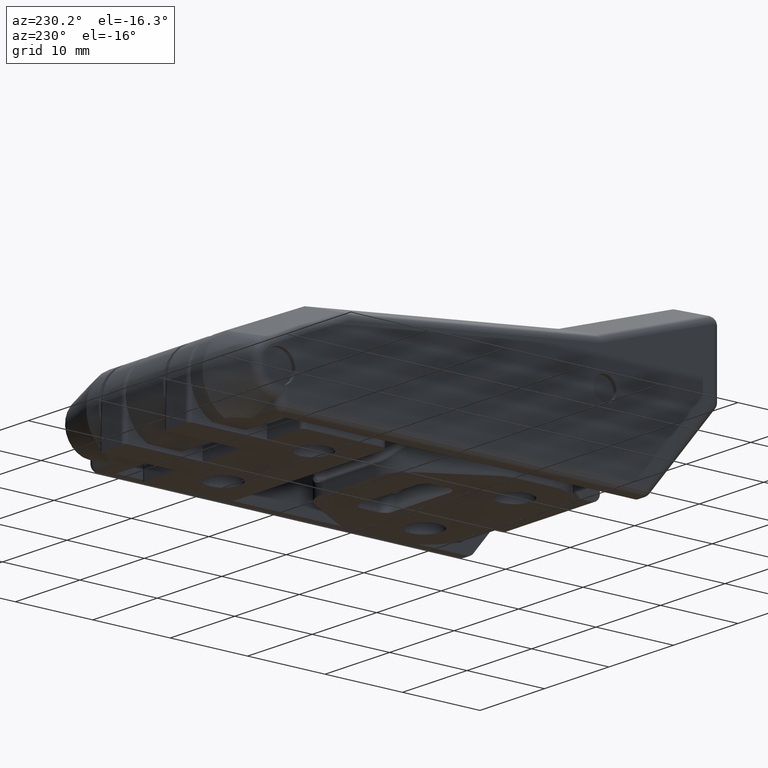
[diagram: clean part render]
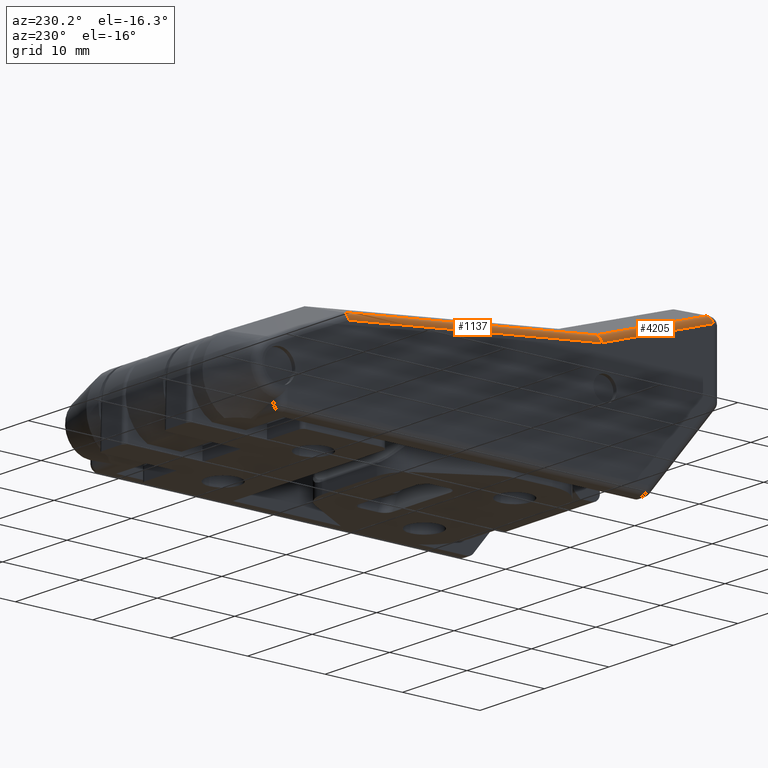
[diagram: same view with one multi-face feature highlighted, each face labeled with its STEP entity id]
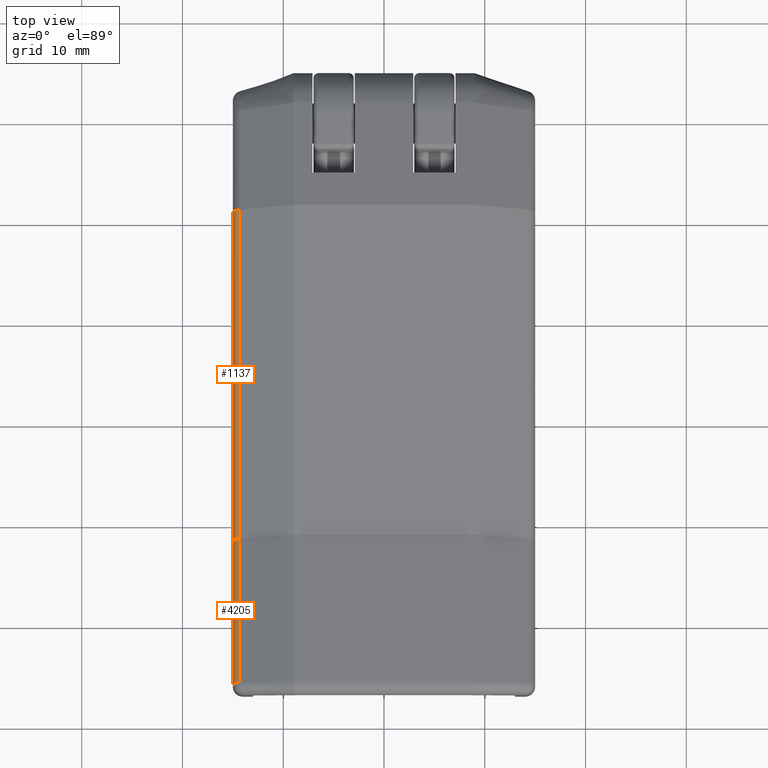
[diagram: same view with one multi-face feature highlighted, each face labeled with its STEP entity id]
A machine part, auxiliary view. The highlighted faces form ONE feature: a constant-radius fillet chain: 2 tangent blend faces with common blend radius 1 mm. The faces share edges in the B-rep.
A second angle (top view) of the same feature is appended — it is thin or edge-on in the first view.
Their STEP definitions:
[1] entity #1137 (Cylinder):
#237 = ORIENTED_EDGE ( 'NONE', *, *, #2451, .F. ) ;
#315 = CYLINDRICAL_SURFACE ( 'NONE', #10480, 1.000000000000000400 ) ;
#699 = CARTESIAN_POINT ( 'NONE',  ( -15.00000000000000000, -41.58161922099627400, 10.12842524497670200 ) ) ;
#748 = CARTESIAN_POINT ( 'NONE',  ( -14.73926546838042200, -41.40896270004362400, 10.92149532568230800 ) ) ;
#785 = ORIENTED_EDGE ( 'NONE', *, *, #5878, .F. ) ;
#1015 = ORIENTED_EDGE ( 'NONE', *, *, #10416, .F. ) ;
#1137 = ADVANCED_FACE ( 'NONE', ( #6112 ), #315, .T. ) ;
#1267 = CARTESIAN_POINT ( 'NONE',  ( -14.31622776601683500, -41.40131146226225000, 11.06256465520910500 ) ) ;
#2451 = EDGE_CURVE ( 'NONE', #12028, #13137, #8706, .T. ) ;
#2913 = VERTEX_POINT ( 'NONE', #8005 ) ;
#3031 = EDGE_CURVE ( 'NONE', #3457, #2913, #8625, .T. ) ;
#3359 = CARTESIAN_POINT ( 'NONE',  ( -14.73926546838042000, -8.700923631012017300, 7.132149335959893800 ) ) ;
#3457 = VERTEX_POINT ( 'NONE', #12843 ) ;
#3458 = CARTESIAN_POINT ( 'NONE',  ( -15.00000000000000000, -8.795644311069803900, 6.778953610715476000 ) ) ;
#4583 = CARTESIAN_POINT ( 'NONE',  ( -14.31622776601683700, -8.664000860478573400, 7.269827451326346300 ) ) ;
#5878 = EDGE_CURVE ( 'NONE', #13137, #2913, #12982, .T. ) ;
#6112 = FACE_OUTER_BOUND ( 'NONE', #13254, .T. ) ;
#6190 = CARTESIAN_POINT ( 'NONE',  ( -15.00000000000000000, -41.48629429848399000, 10.56628501171390700 ) ) ;
#6793 = VECTOR ( 'NONE', #13284, 1000.000000000000200 ) ;
#7119 = DIRECTION ( 'NONE',  ( -0.0000000000000000000, 0.9933557750294945700, -0.1150839007661454600 ) ) ;
#7662 = CARTESIAN_POINT ( 'NONE',  ( -13.99999999999999800, -8.537132549716442800, 6.300100569627764100 ) ) ;
#8005 = CARTESIAN_POINT ( 'NONE',  ( -14.31622776601683700, -41.37881831275213800, 11.05995874154633500 ) ) ;
#8363 = VECTOR ( 'NONE', #7119, 1000.000000000000200 ) ;
#8386 = CARTESIAN_POINT ( 'NONE',  ( -14.31622776601683700, -41.37881831275213800, 11.05995874154633500 ) ) ;
#8625 =( BOUNDED_CURVE ( )  B_SPLINE_CURVE ( 3, ( #699, #6190, #748, #8386 ),
 .UNSPECIFIED., .F., .F. ) 
 B_SPLINE_CURVE_WITH_KNOTS ( ( 4, 4 ),
 ( 4.712388980384691500, 5.961434752782942300 ),
 .UNSPECIFIED. ) 
 CURVE ( )  GEOMETRIC_REPRESENTATION_ITEM ( )  RATIONAL_B_SPLINE_CURVE ( ( 1.000000000000000000, 0.8741614567837079400, 0.8741614567837079400, 1.000000000000000000 ) ) 
 REPRESENTATION_ITEM ( '' )  );
#8706 =( BOUNDED_CURVE ( )  B_SPLINE_CURVE ( 3, ( #11117, #3458, #3359, #4583 ),
 .UNSPECIFIED., .F., .F. ) 
 B_SPLINE_CURVE_WITH_KNOTS ( ( 4, 4 ),
 ( 1.570796326794896600, 2.819842099193149700 ),
 .UNSPECIFIED. ) 
 CURVE ( )  GEOMETRIC_REPRESENTATION_ITEM ( )  RATIONAL_B_SPLINE_CURVE ( ( 1.000000000000000000, 0.8741614567837073800, 0.8741614567837073800, 1.000000000000000000 ) ) 
 REPRESENTATION_ITEM ( '' )  );
#8738 = DIRECTION ( 'NONE',  ( 0.0000000000000000000, 0.1150839007661458400, 0.9933557750294945700 ) ) ;
#8878 = CARTESIAN_POINT ( 'NONE',  ( -14.31622776601683700, -8.664000860478573400, 7.269827451326346300 ) ) ;
#10366 = CARTESIAN_POINT ( 'NONE',  ( -15.00000000000000000, -8.806628348063100000, 6.331322643826606400 ) ) ;
#10416 = EDGE_CURVE ( 'NONE', #3457, #12028, #11280, .T. ) ;
#10446 = ORIENTED_EDGE ( 'NONE', *, *, #3031, .T. ) ;
#10480 = AXIS2_PLACEMENT_3D ( 'NONE', #7662, #13170, #8738 ) ;
#10921 = CARTESIAN_POINT ( 'NONE',  ( -15.00000000000000000, -8.912404363479145900, 6.343577182198034200 ) ) ;
#11117 = CARTESIAN_POINT ( 'NONE',  ( -15.00000000000000000, -8.912404363479145900, 6.343577182198034200 ) ) ;
#11280 = LINE ( 'NONE', #10366, #8363 ) ;
#12028 = VERTEX_POINT ( 'NONE', #10921 ) ;
#12843 = CARTESIAN_POINT ( 'NONE',  ( -15.00000000000000000, -41.58161922099627400, 10.12842524497670200 ) ) ;
#12982 = LINE ( 'NONE', #1267, #6793 ) ;
#13137 = VERTEX_POINT ( 'NONE', #8878 ) ;
#13170 = DIRECTION ( 'NONE',  ( 0.0000000000000000000, 0.9933557750294947900, -0.1150839007661454700 ) ) ;
#13254 = EDGE_LOOP ( 'NONE', ( #10446, #785, #237, #1015 ) ) ;
#13284 = DIRECTION ( 'NONE',  ( -1.316562550716262800E-017, -0.9933557750294945700, 0.1150839007661454700 ) ) ;
[2] entity #4205 (Cylinder):
#109 = LINE ( 'NONE', #5221, #11050 ) ;
#699 = CARTESIAN_POINT ( 'NONE',  ( -15.00000000000000000, -41.58161922099627400, 10.12842524497670200 ) ) ;
#748 = CARTESIAN_POINT ( 'NONE',  ( -14.73926546838042200, -41.40896270004362400, 10.92149532568230800 ) ) ;
#1277 = DIRECTION ( 'NONE',  ( 0.0000000000000000000, -0.9512958520336057800, 0.3082794217972654200 ) ) ;
#1378 = CARTESIAN_POINT ( 'NONE',  ( -14.00000000000000000, -55.99999999988141000, 14.80088342953156800 ) ) ;
#1579 = CARTESIAN_POINT ( 'NONE',  ( -14.31622776601683700, -41.56179243109943400, 11.11925381288233100 ) ) ;
#1893 = CYLINDRICAL_SURFACE ( 'NONE', #7019, 1.000000000000000700 ) ;
#2117 = ORIENTED_EDGE ( 'NONE', *, *, #8303, .F. ) ;
#2230 = FACE_OUTER_BOUND ( 'NONE', #5001, .T. ) ;
#2480 = DIRECTION ( 'NONE',  ( 0.0000000000000000000, -0.3082794217972651400, -0.9512958520336057800 ) ) ;
#2913 = VERTEX_POINT ( 'NONE', #8005 ) ;
#3031 = EDGE_CURVE ( 'NONE', #3457, #2913, #8625, .T. ) ;
#3231 = VECTOR ( 'NONE', #13580, 1000.000000000000100 ) ;
#3457 = VERTEX_POINT ( 'NONE', #12843 ) ;
#3508 = ORIENTED_EDGE ( 'NONE', *, *, #3031, .F. ) ;
#3791 = EDGE_CURVE ( 'NONE', #11871, #12670, #5497, .T. ) ;
#4205 = ADVANCED_FACE ( 'NONE', ( #2230 ), #1893, .T. ) ;
#5001 = EDGE_LOOP ( 'NONE', ( #13442, #12912, #3508, #2117 ) ) ;
#5221 = CARTESIAN_POINT ( 'NONE',  ( -15.00000000000000000, -0.9814471863878896400, -3.028572688886282700 ) ) ;
#5497 = CIRCLE ( 'NONE', #9746, 1.000000000000000700 ) ;
#6190 = CARTESIAN_POINT ( 'NONE',  ( -15.00000000000000000, -41.48629429848399000, 10.56628501171390700 ) ) ;
#7019 = AXIS2_PLACEMENT_3D ( 'NONE', #7831, #1277, #13295 ) ;
#7175 = LINE ( 'NONE', #1579, #3231 ) ;
#7831 = CARTESIAN_POINT ( 'NONE',  ( -13.99999999999999800, -41.85425196969117000, 10.21677532655331400 ) ) ;
#8005 = CARTESIAN_POINT ( 'NONE',  ( -14.31622776601683700, -41.37881831275213800, 11.05995874154633500 ) ) ;
#8303 = EDGE_CURVE ( 'NONE', #11871, #3457, #109, .T. ) ;
#8386 = CARTESIAN_POINT ( 'NONE',  ( -14.31622776601683700, -41.37881831275213800, 11.05995874154633500 ) ) ;
#8625 =( BOUNDED_CURVE ( )  B_SPLINE_CURVE ( 3, ( #699, #6190, #748, #8386 ),
 .UNSPECIFIED., .F., .F. ) 
 B_SPLINE_CURVE_WITH_KNOTS ( ( 4, 4 ),
 ( 4.712388980384691500, 5.961434752782942300 ),
 .UNSPECIFIED. ) 
 CURVE ( )  GEOMETRIC_REPRESENTATION_ITEM ( )  RATIONAL_B_SPLINE_CURVE ( ( 1.000000000000000000, 0.8741614567837079400, 0.8741614567837079400, 1.000000000000000000 ) ) 
 REPRESENTATION_ITEM ( '' )  );
#9016 = DIRECTION ( 'NONE',  ( 1.069559100304545400E-015, 0.9512958520336057800, -0.3082794217972653100 ) ) ;
#9746 = AXIS2_PLACEMENT_3D ( 'NONE', #1378, #9016, #2480 ) ;
#10006 = CARTESIAN_POINT ( 'NONE',  ( -14.31622776601683700, -55.70754046128967500, 15.70336191586058500 ) ) ;
#10354 = EDGE_CURVE ( 'NONE', #2913, #12670, #7175, .T. ) ;
#10634 = CARTESIAN_POINT ( 'NONE',  ( -15.00000000000000000, -55.99999999988141000, 14.80088342953156500 ) ) ;
#11050 = VECTOR ( 'NONE', #11769, 1000.000000000000100 ) ;
#11769 = DIRECTION ( 'NONE',  ( -0.0000000000000000000, 0.9512958520336056700, -0.3082794217972653600 ) ) ;
#11871 = VERTEX_POINT ( 'NONE', #10634 ) ;
#12670 = VERTEX_POINT ( 'NONE', #10006 ) ;
#12843 = CARTESIAN_POINT ( 'NONE',  ( -15.00000000000000000, -41.58161922099627400, 10.12842524497670200 ) ) ;
#12912 = ORIENTED_EDGE ( 'NONE', *, *, #10354, .F. ) ;
#13295 = DIRECTION ( 'NONE',  ( 0.0000000000000000000, -0.3082794217972651400, -0.9512958520336057800 ) ) ;
#13442 = ORIENTED_EDGE ( 'NONE', *, *, #3791, .T. ) ;
#13580 = DIRECTION ( 'NONE',  ( 2.704341331497708500E-017, -0.9512958520336056700, 0.3082794217972653600 ) ) ;